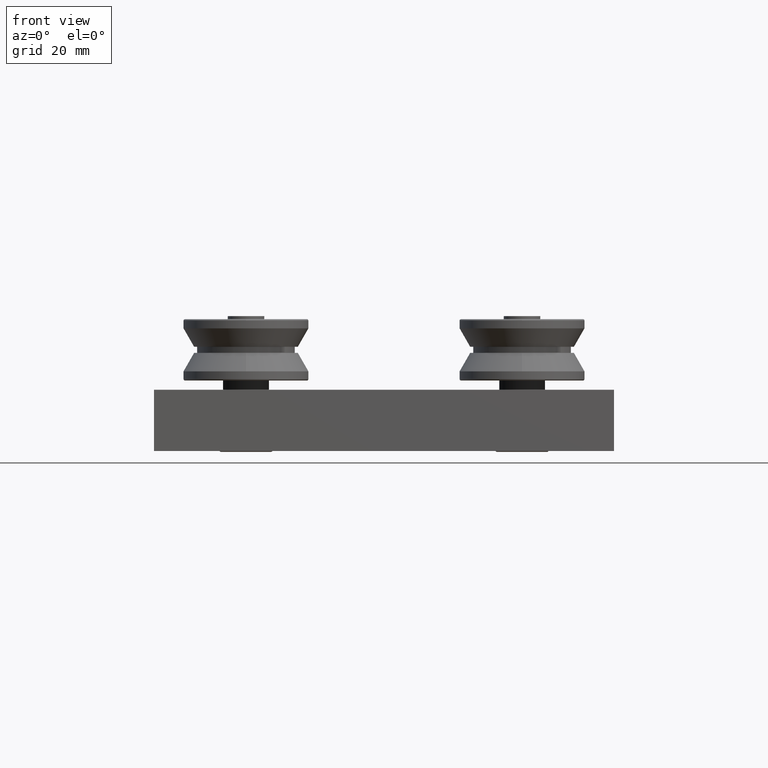
[diagram: clean part render]
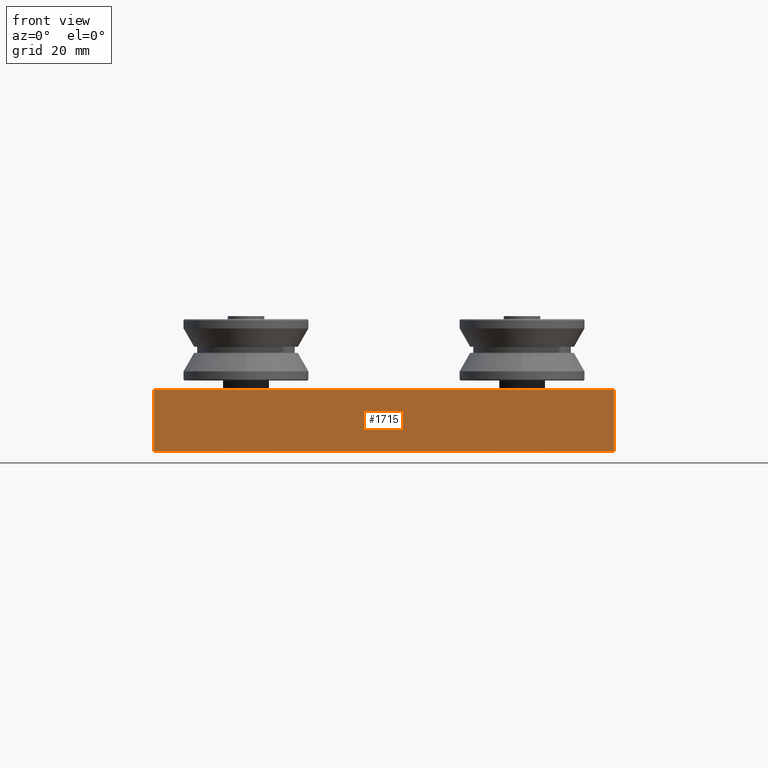
[diagram: same view with one face highlighted and labeled with its STEP entity id]
A machine part, front view. The second image highlights one B-rep face of the part: STEP entity #1715.
In plain terms, the highlighted planar face has unit normal (-0, -1, 0).
Its self-contained STEP definition (entity closure, byte-faithful):
#222=PLANE('',#2035);
#295=FACE_OUTER_BOUND('',#411,.T.);
#411=EDGE_LOOP('',(#1306,#1307,#1308,#1309));
#532=LINE('',#2811,#661);
#536=LINE('',#2819,#665);
#542=LINE('',#2830,#671);
#543=LINE('',#2832,#672);
#661=VECTOR('',#2291,10.);
#665=VECTOR('',#2297,10.);
#671=VECTOR('',#2307,10.);
#672=VECTOR('',#2310,10.);
#883=VERTEX_POINT('',#2809);
#884=VERTEX_POINT('',#2810);
#887=VERTEX_POINT('',#2818);
#890=VERTEX_POINT('',#2828);
#1040=EDGE_CURVE('',#883,#884,#532,.T.);
#1044=EDGE_CURVE('',#887,#884,#536,.T.);
#1050=EDGE_CURVE('',#883,#890,#542,.T.);
#1051=EDGE_CURVE('',#887,#890,#543,.T.);
#1306=ORIENTED_EDGE('',*,*,#1050,.T.);
#1307=ORIENTED_EDGE('',*,*,#1051,.F.);
#1308=ORIENTED_EDGE('',*,*,#1044,.T.);
#1309=ORIENTED_EDGE('',*,*,#1040,.F.);
#1715=ADVANCED_FACE('',(#295),#222,.T.);
#2035=AXIS2_PLACEMENT_3D('',#2831,#2308,#2309);
#2291=DIRECTION('',(-1.,-1.1842378929335E-16,0.));
#2297=DIRECTION('',(0.,0.,-1.));
#2307=DIRECTION('',(0.,0.,1.));
#2308=DIRECTION('center_axis',(1.1842378929335E-16,-1.,0.));
#2309=DIRECTION('ref_axis',(1.,1.1842378929335E-16,0.));
#2310=DIRECTION('',(1.,1.1842378929335E-16,0.));
#2809=CARTESIAN_POINT('',(75.,-90.,-10.));
#2810=CARTESIAN_POINT('',(-75.,-90.,-10.));
#2811=CARTESIAN_POINT('',(75.,-90.,-10.));
#2818=CARTESIAN_POINT('',(-75.,-90.,10.));
#2819=CARTESIAN_POINT('',(-75.,-90.,0.));
#2828=CARTESIAN_POINT('',(75.,-90.,10.));
#2830=CARTESIAN_POINT('',(75.,-90.,0.));
#2831=CARTESIAN_POINT('Origin',(-75.,-90.,0.));
#2832=CARTESIAN_POINT('',(75.,-90.,10.));